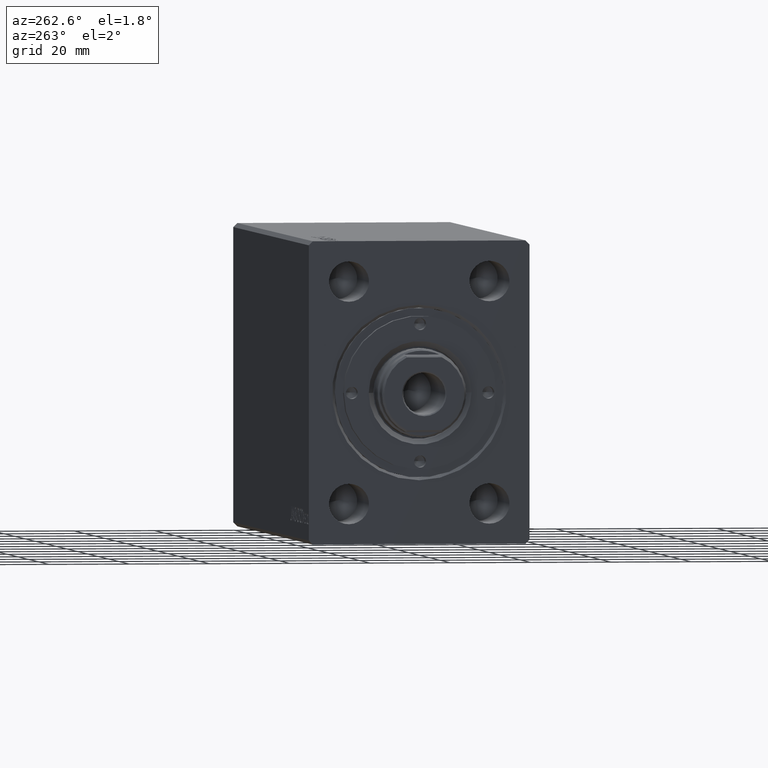
[diagram: clean part render]
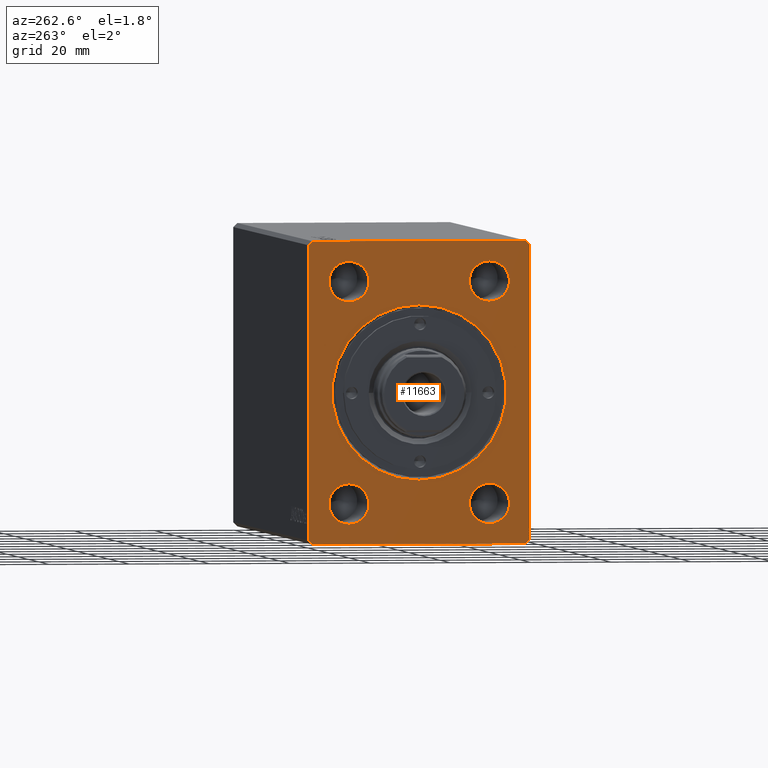
[diagram: same view with one face highlighted and labeled with its STEP entity id]
A machine part, auxiliary view. The second image highlights one B-rep face of the part: STEP entity #11663.
In plain terms, the highlighted planar face has unit normal (1, 0, 0).
Its self-contained STEP definition (entity closure, byte-faithful):
#1 = FACE_BOUND ( 'NONE', #3132, .T. ) ;
#161 = DIRECTION ( 'NONE',  ( -1.000000000000000000, -0.000000000000000000, -0.000000000000000000 ) ) ;
#378 = DIRECTION ( 'NONE',  ( 0.000000000000000000, 0.000000000000000000, 1.000000000000000000 ) ) ;
#415 = VECTOR ( 'NONE', #24941, 1000.000000000000000 ) ;
#762 = EDGE_CURVE ( 'NONE', #8461, #43063, #40999, .T. ) ;
#956 = DIRECTION ( 'NONE',  ( 0.000000000000000000, 0.000000000000000000, 1.000000000000000000 ) ) ;
#1078 = EDGE_LOOP ( 'NONE', ( #31688, #35065, #34970, #9319, #33220, #24584, #19078, #6455 ) ) ;
#1722 = CARTESIAN_POINT ( 'NONE',  ( 1.224646799147350495E-16, 17.50000000000000000, -22.49999999999999645 ) ) ;
#1762 = CARTESIAN_POINT ( 'NONE',  ( 1.224646799147350495E-16, -17.50000000000000000, -32.49999999999999289 ) ) ;
#2047 = ORIENTED_EDGE ( 'NONE', *, *, #43320, .F. ) ;
#2270 = EDGE_CURVE ( 'NONE', #31304, #26541, #11539, .T. ) ;
#2551 = DIRECTION ( 'NONE',  ( 0.000000000000000000, 0.000000000000000000, 1.000000000000000000 ) ) ;
#2911 = CARTESIAN_POINT ( 'NONE',  ( 0.000000000000000000, 0.000000000000000000, 0.000000000000000000 ) ) ;
#3038 = AXIS2_PLACEMENT_3D ( 'NONE', #9458, #36236, #2551 ) ;
#3132 = EDGE_LOOP ( 'NONE', ( #3673, #2047 ) ) ;
#3208 = LINE ( 'NONE', #30413, #22371 ) ;
#3376 = AXIS2_PLACEMENT_3D ( 'NONE', #4793, #42035, #38460 ) ;
#3420 = VERTEX_POINT ( 'NONE', #1762 ) ;
#3452 = VECTOR ( 'NONE', #40269, 1000.000000000000114 ) ;
#3491 = AXIS2_PLACEMENT_3D ( 'NONE', #2911, #26346, #43280 ) ;
#3673 = ORIENTED_EDGE ( 'NONE', *, *, #22648, .F. ) ;
#3995 = DIRECTION ( 'NONE',  ( 0.000000000000000000, 0.000000000000000000, 1.000000000000000000 ) ) ;
#4793 = CARTESIAN_POINT ( 'NONE',  ( 1.224646799147350495E-16, 17.50000000000000000, 27.50000000000000000 ) ) ;
#4850 = AXIS2_PLACEMENT_3D ( 'NONE', #39021, #39243, #8477 ) ;
#5214 = VERTEX_POINT ( 'NONE', #28112 ) ;
#6030 = FACE_BOUND ( 'NONE', #31377, .T. ) ;
#6193 = VERTEX_POINT ( 'NONE', #29399 ) ;
#6289 = EDGE_CURVE ( 'NONE', #39136, #12795, #33280, .T. ) ;
#6455 = ORIENTED_EDGE ( 'NONE', *, *, #13777, .F. ) ;
#6644 = CIRCLE ( 'NONE', #8682, 4.999999999999997335 ) ;
#6701 = PLANE ( 'NONE',  #3491 ) ;
#6705 = VECTOR ( 'NONE', #43566, 1000.000000000000000 ) ;
#6985 = EDGE_CURVE ( 'NONE', #19844, #30460, #21193, .T. ) ;
#7295 = DIRECTION ( 'NONE',  ( 0.000000000000000000, 0.000000000000000000, 1.000000000000000000 ) ) ;
#7334 = CARTESIAN_POINT ( 'NONE',  ( 1.224646799147350495E-16, -17.50000000000000000, 27.50000000000000355 ) ) ;
#7748 = ORIENTED_EDGE ( 'NONE', *, *, #16618, .T. ) ;
#8206 = EDGE_CURVE ( 'NONE', #14187, #27724, #25230, .T. ) ;
#8269 = DIRECTION ( 'NONE',  ( 0.000000000000000000, 0.7071067811865474617, 0.7071067811865474617 ) ) ;
#8370 = LINE ( 'NONE', #11266, #42142 ) ;
#8461 = VERTEX_POINT ( 'NONE', #26992 ) ;
#8477 = DIRECTION ( 'NONE',  ( 0.000000000000000000, 0.000000000000000000, 1.000000000000000000 ) ) ;
#8682 = AXIS2_PLACEMENT_3D ( 'NONE', #10417, #10854, #7295 ) ;
#8809 = ORIENTED_EDGE ( 'NONE', *, *, #19650, .F. ) ;
#9062 = ORIENTED_EDGE ( 'NONE', *, *, #6289, .T. ) ;
#9319 = ORIENTED_EDGE ( 'NONE', *, *, #26628, .F. ) ;
#9458 = CARTESIAN_POINT ( 'NONE',  ( 1.224646799147350495E-16, 17.50000000000000000, 27.50000000000000000 ) ) ;
#10024 = CARTESIAN_POINT ( 'NONE',  ( 0.000000000000000000, -27.50000000000000711, 36.50000000000000711 ) ) ;
#10028 = AXIS2_PLACEMENT_3D ( 'NONE', #13258, #26871, #22868 ) ;
#10417 = CARTESIAN_POINT ( 'NONE',  ( 1.224646799147350495E-16, -17.50000000000000000, -27.49999999999999645 ) ) ;
#10490 = CARTESIAN_POINT ( 'NONE',  ( 0.000000000000000000, 0.000000000000000000, 21.70000000000000995 ) ) ;
#10782 = ORIENTED_EDGE ( 'NONE', *, *, #36824, .F. ) ;
#10854 = DIRECTION ( 'NONE',  ( -1.000000000000000000, -0.000000000000000000, -0.000000000000000000 ) ) ;
#11197 = CARTESIAN_POINT ( 'NONE',  ( 1.224646799147350495E-16, 17.50000000000000000, -27.49999999999999289 ) ) ;
#11266 = CARTESIAN_POINT ( 'NONE',  ( 0.000000000000000000, 27.50000000000000355, 36.50000000000000711 ) ) ;
#11320 = CARTESIAN_POINT ( 'NONE',  ( 0.000000000000000000, 27.50000000000000355, 36.50000000000000711 ) ) ;
#11539 = LINE ( 'NONE', #25153, #415 ) ;
#11663 = ADVANCED_FACE ( 'NONE', ( #1, #16958, #6030, #27222, #30339, #36790 ), #6701, .F. ) ;
#12022 = CARTESIAN_POINT ( 'NONE',  ( 0.000000000000000000, 26.50000000000000711, -37.49999999999999289 ) ) ;
#12795 = VERTEX_POINT ( 'NONE', #10490 ) ;
#13258 = CARTESIAN_POINT ( 'NONE',  ( 0.000000000000000000, 0.000000000000000000, 0.000000000000000000 ) ) ;
#13636 = EDGE_CURVE ( 'NONE', #43063, #8461, #34172, .T. ) ;
#13777 = EDGE_CURVE ( 'NONE', #28015, #43152, #29273, .T. ) ;
#14187 = VERTEX_POINT ( 'NONE', #12022 ) ;
#15136 = ORIENTED_EDGE ( 'NONE', *, *, #6985, .F. ) ;
#15302 = AXIS2_PLACEMENT_3D ( 'NONE', #7334, #34543, #3995 ) ;
#15673 = CARTESIAN_POINT ( 'NONE',  ( 0.000000000000000000, 26.50000000000000355, 37.50000000000000711 ) ) ;
#16367 = CARTESIAN_POINT ( 'NONE',  ( 0.000000000000000000, -27.50000000000000355, -36.49999999999998579 ) ) ;
#16368 = VECTOR ( 'NONE', #33265, 1000.000000000000000 ) ;
#16618 = EDGE_CURVE ( 'NONE', #12795, #39136, #25006, .T. ) ;
#16642 = EDGE_CURVE ( 'NONE', #26541, #5214, #23530, .T. ) ;
#16958 = FACE_BOUND ( 'NONE', #17268, .T. ) ;
#17268 = EDGE_LOOP ( 'NONE', ( #26320, #8809 ) ) ;
#19011 = EDGE_LOOP ( 'NONE', ( #7748, #9062 ) ) ;
#19078 = ORIENTED_EDGE ( 'NONE', *, *, #36133, .F. ) ;
#19230 = EDGE_LOOP ( 'NONE', ( #10782, #15136 ) ) ;
#19650 = EDGE_CURVE ( 'NONE', #3420, #24946, #6644, .T. ) ;
#19785 = LINE ( 'NONE', #36706, #3452 ) ;
#19844 = VERTEX_POINT ( 'NONE', #43380 ) ;
#20567 = CARTESIAN_POINT ( 'NONE',  ( 1.224646799147350495E-16, -17.50000000000000000, 32.50000000000000000 ) ) ;
#21193 = CIRCLE ( 'NONE', #32588, 4.999999999999997335 ) ;
#21331 = DIRECTION ( 'NONE',  ( 0.000000000000000000, -0.7071067811865474617, 0.7071067811865474617 ) ) ;
#22371 = VECTOR ( 'NONE', #34424, 1000.000000000000000 ) ;
#22648 = EDGE_CURVE ( 'NONE', #23669, #6193, #39358, .T. ) ;
#22862 = VECTOR ( 'NONE', #36453, 1000.000000000000114 ) ;
#22868 = DIRECTION ( 'NONE',  ( 0.000000000000000000, 0.000000000000000000, -1.000000000000000000 ) ) ;
#23365 = CARTESIAN_POINT ( 'NONE',  ( 0.000000000000000000, 0.000000000000000000, 0.000000000000000000 ) ) ;
#23421 = CARTESIAN_POINT ( 'NONE',  ( 0.000000000000000000, 27.50000000000000711, -36.49999999999999289 ) ) ;
#23530 = LINE ( 'NONE', #37114, #22862 ) ;
#23669 = VERTEX_POINT ( 'NONE', #39315 ) ;
#24030 = CARTESIAN_POINT ( 'NONE',  ( 0.000000000000000000, 26.50000000000000355, 37.50000000000000711 ) ) ;
#24083 = CIRCLE ( 'NONE', #4850, 4.999999999999997335 ) ;
#24584 = ORIENTED_EDGE ( 'NONE', *, *, #2270, .F. ) ;
#24941 = DIRECTION ( 'NONE',  ( 0.000000000000000000, 4.752667057470705491E-17, -1.000000000000000000 ) ) ;
#24946 = VERTEX_POINT ( 'NONE', #27665 ) ;
#25006 = CIRCLE ( 'NONE', #10028, 21.70000000000000995 ) ;
#25153 = CARTESIAN_POINT ( 'NONE',  ( 0.000000000000000000, -27.50000000000000711, 36.50000000000000711 ) ) ;
#25230 = LINE ( 'NONE', #38817, #41157 ) ;
#25253 = DIRECTION ( 'NONE',  ( -1.000000000000000000, -0.000000000000000000, -0.000000000000000000 ) ) ;
#26320 = ORIENTED_EDGE ( 'NONE', *, *, #34930, .F. ) ;
#26346 = DIRECTION ( 'NONE',  ( 1.000000000000000000, 0.000000000000000000, 0.000000000000000000 ) ) ;
#26541 = VERTEX_POINT ( 'NONE', #16367 ) ;
#26573 = CARTESIAN_POINT ( 'NONE',  ( 1.224646799147350495E-16, 17.50000000000000000, -27.49999999999999289 ) ) ;
#26581 = EDGE_CURVE ( 'NONE', #27724, #30705, #29107, .T. ) ;
#26628 = EDGE_CURVE ( 'NONE', #5214, #14187, #3208, .T. ) ;
#26871 = DIRECTION ( 'NONE',  ( 1.000000000000000000, 0.000000000000000000, 0.000000000000000000 ) ) ;
#26992 = CARTESIAN_POINT ( 'NONE',  ( 1.224646799147350495E-16, 17.50000000000000000, -32.49999999999998579 ) ) ;
#27222 = FACE_BOUND ( 'NONE', #19230, .T. ) ;
#27665 = CARTESIAN_POINT ( 'NONE',  ( 1.224646799147350495E-16, -17.50000000000000000, -22.50000000000000000 ) ) ;
#27724 = VERTEX_POINT ( 'NONE', #23421 ) ;
#28015 = VERTEX_POINT ( 'NONE', #24030 ) ;
#28112 = CARTESIAN_POINT ( 'NONE',  ( 0.000000000000000000, -26.50000000000000355, -37.49999999999999289 ) ) ;
#29107 = LINE ( 'NONE', #42924, #6705 ) ;
#29273 = LINE ( 'NONE', #15673, #16368 ) ;
#29399 = CARTESIAN_POINT ( 'NONE',  ( 1.224646799147350495E-16, 17.50000000000000000, 22.50000000000000355 ) ) ;
#30339 = FACE_BOUND ( 'NONE', #19011, .T. ) ;
#30413 = CARTESIAN_POINT ( 'NONE',  ( 0.000000000000000000, -26.50000000000000355, -37.49999999999999289 ) ) ;
#30460 = VERTEX_POINT ( 'NONE', #20567 ) ;
#30498 = DIRECTION ( 'NONE',  ( 1.000000000000000000, 0.000000000000000000, 0.000000000000000000 ) ) ;
#30705 = VERTEX_POINT ( 'NONE', #11320 ) ;
#30718 = DIRECTION ( 'NONE',  ( 0.000000000000000000, 0.000000000000000000, -1.000000000000000000 ) ) ;
#31304 = VERTEX_POINT ( 'NONE', #10024 ) ;
#31377 = EDGE_LOOP ( 'NONE', ( #39980, #35183 ) ) ;
#31666 = EDGE_CURVE ( 'NONE', #30705, #28015, #8370, .T. ) ;
#31688 = ORIENTED_EDGE ( 'NONE', *, *, #31666, .F. ) ;
#32588 = AXIS2_PLACEMENT_3D ( 'NONE', #40524, #161, #378 ) ;
#33186 = AXIS2_PLACEMENT_3D ( 'NONE', #26573, #40150, #33489 ) ;
#33220 = ORIENTED_EDGE ( 'NONE', *, *, #16642, .F. ) ;
#33265 = DIRECTION ( 'NONE',  ( 0.000000000000000000, -1.000000000000000000, 0.000000000000000000 ) ) ;
#33280 = CIRCLE ( 'NONE', #43240, 21.70000000000000995 ) ;
#33470 = AXIS2_PLACEMENT_3D ( 'NONE', #11197, #25253, #956 ) ;
#33489 = DIRECTION ( 'NONE',  ( 0.000000000000000000, 0.000000000000000000, 1.000000000000000000 ) ) ;
#34172 = CIRCLE ( 'NONE', #33470, 4.999999999999997335 ) ;
#34424 = DIRECTION ( 'NONE',  ( 0.000000000000000000, 1.000000000000000000, 0.000000000000000000 ) ) ;
#34535 = CIRCLE ( 'NONE', #15302, 4.999999999999997335 ) ;
#34543 = DIRECTION ( 'NONE',  ( -1.000000000000000000, -0.000000000000000000, -0.000000000000000000 ) ) ;
#34930 = EDGE_CURVE ( 'NONE', #24946, #3420, #24083, .T. ) ;
#34970 = ORIENTED_EDGE ( 'NONE', *, *, #8206, .F. ) ;
#35065 = ORIENTED_EDGE ( 'NONE', *, *, #26581, .F. ) ;
#35183 = ORIENTED_EDGE ( 'NONE', *, *, #762, .F. ) ;
#35282 = CARTESIAN_POINT ( 'NONE',  ( 0.000000000000000000, 2.657483554149757921E-15, -21.70000000000000995 ) ) ;
#36133 = EDGE_CURVE ( 'NONE', #43152, #31304, #19785, .T. ) ;
#36236 = DIRECTION ( 'NONE',  ( -1.000000000000000000, -0.000000000000000000, -0.000000000000000000 ) ) ;
#36453 = DIRECTION ( 'NONE',  ( 0.000000000000000000, 0.7071067811865451302, -0.7071067811865500152 ) ) ;
#36706 = CARTESIAN_POINT ( 'NONE',  ( 0.000000000000000000, -26.50000000000000711, 37.50000000000000711 ) ) ;
#36790 = FACE_OUTER_BOUND ( 'NONE', #1078, .T. ) ;
#36824 = EDGE_CURVE ( 'NONE', #30460, #19844, #34535, .T. ) ;
#37114 = CARTESIAN_POINT ( 'NONE',  ( 0.000000000000000000, -27.50000000000000355, -36.49999999999998579 ) ) ;
#38460 = DIRECTION ( 'NONE',  ( 0.000000000000000000, 0.000000000000000000, 1.000000000000000000 ) ) ;
#38817 = CARTESIAN_POINT ( 'NONE',  ( 0.000000000000000000, 26.50000000000000711, -37.49999999999999289 ) ) ;
#39021 = CARTESIAN_POINT ( 'NONE',  ( 1.224646799147350495E-16, -17.50000000000000000, -27.49999999999999645 ) ) ;
#39136 = VERTEX_POINT ( 'NONE', #35282 ) ;
#39243 = DIRECTION ( 'NONE',  ( -1.000000000000000000, -0.000000000000000000, -0.000000000000000000 ) ) ;
#39315 = CARTESIAN_POINT ( 'NONE',  ( 1.224646799147350495E-16, 17.50000000000000000, 32.50000000000000000 ) ) ;
#39358 = CIRCLE ( 'NONE', #3038, 5.000000000000000888 ) ;
#39683 = CIRCLE ( 'NONE', #3376, 5.000000000000000888 ) ;
#39980 = ORIENTED_EDGE ( 'NONE', *, *, #13636, .F. ) ;
#40150 = DIRECTION ( 'NONE',  ( -1.000000000000000000, -0.000000000000000000, -0.000000000000000000 ) ) ;
#40269 = DIRECTION ( 'NONE',  ( 0.000000000000000000, -0.7071067811865474617, -0.7071067811865474617 ) ) ;
#40524 = CARTESIAN_POINT ( 'NONE',  ( 1.224646799147350495E-16, -17.50000000000000000, 27.50000000000000355 ) ) ;
#40999 = CIRCLE ( 'NONE', #33186, 4.999999999999997335 ) ;
#41157 = VECTOR ( 'NONE', #8269, 1000.000000000000114 ) ;
#42035 = DIRECTION ( 'NONE',  ( -1.000000000000000000, -0.000000000000000000, -0.000000000000000000 ) ) ;
#42142 = VECTOR ( 'NONE', #21331, 1000.000000000000114 ) ;
#42924 = CARTESIAN_POINT ( 'NONE',  ( 0.000000000000000000, 27.50000000000000711, -36.49999999999999289 ) ) ;
#43063 = VERTEX_POINT ( 'NONE', #1722 ) ;
#43152 = VERTEX_POINT ( 'NONE', #43400 ) ;
#43240 = AXIS2_PLACEMENT_3D ( 'NONE', #23365, #30498, #30718 ) ;
#43280 = DIRECTION ( 'NONE',  ( 0.000000000000000000, 0.000000000000000000, -1.000000000000000000 ) ) ;
#43320 = EDGE_CURVE ( 'NONE', #6193, #23669, #39683, .T. ) ;
#43380 = CARTESIAN_POINT ( 'NONE',  ( 1.224646799147350495E-16, -17.50000000000000000, 22.50000000000000711 ) ) ;
#43400 = CARTESIAN_POINT ( 'NONE',  ( 0.000000000000000000, -26.50000000000000711, 37.50000000000000711 ) ) ;
#43566 = DIRECTION ( 'NONE',  ( 0.000000000000000000, -4.752667057470704875E-17, 1.000000000000000000 ) ) ;